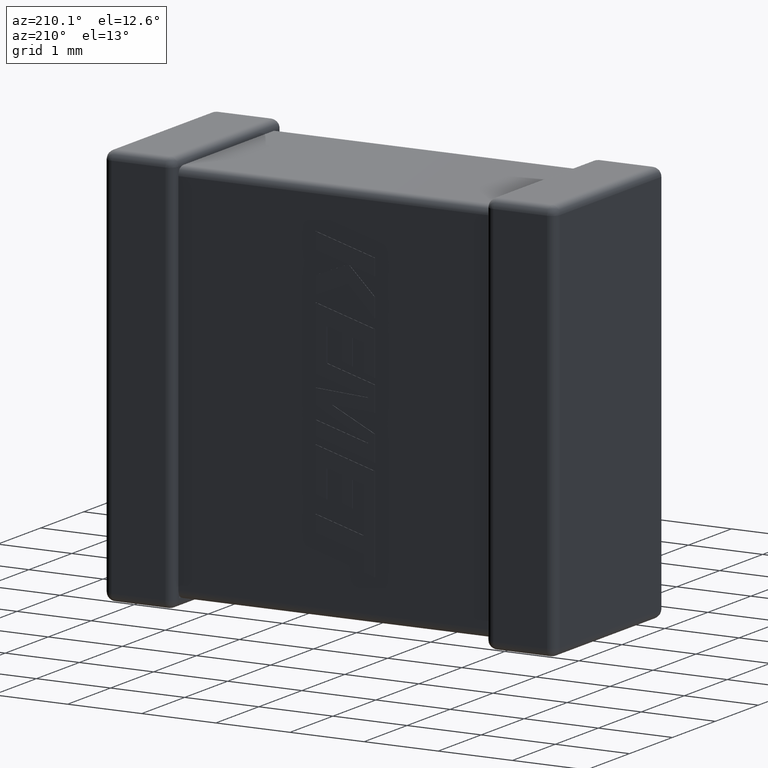
[diagram: clean part render]
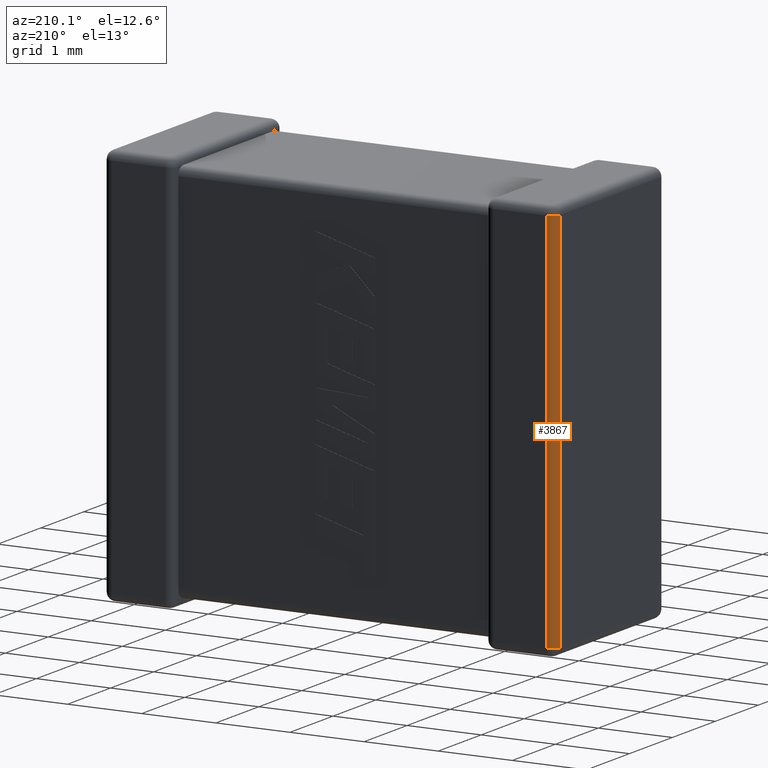
[diagram: same view with one face highlighted and labeled with its STEP entity id]
A machine part, auxiliary view. The second image highlights one B-rep face of the part: STEP entity #3867.
In plain terms, the highlighted cylindrical surface (edge-blend (fillet) strip) has radius 0.1123 mm, axis along (0, 0, -1).
Its self-contained STEP definition (entity closure, byte-faithful):
#9 = VERTEX_POINT ( 'NONE', #1019 ) ;
#96 = DIRECTION ( 'NONE',  ( -0.000000000000000000, 0.000000000000000000, -1.000000000000000000 ) ) ;
#494 = ORIENTED_EDGE ( 'NONE', *, *, #4606, .F. ) ;
#550 = EDGE_LOOP ( 'NONE', ( #2629, #494, #825, #1095 ) ) ;
#804 = CARTESIAN_POINT ( 'NONE',  ( 0.1123200000000000032, 2.437679999999999847, -5.287679999999999936 ) ) ;
#825 = ORIENTED_EDGE ( 'NONE', *, *, #1792, .F. ) ;
#922 = AXIS2_PLACEMENT_3D ( 'NONE', #1913, #3799, #3016 ) ;
#923 = CARTESIAN_POINT ( 'NONE',  ( 0.000000000000000000, 2.437679999999999847, -0.1123199999999999893 ) ) ;
#960 = DIRECTION ( 'NONE',  ( 0.000000000000000000, 0.000000000000000000, 1.000000000000000000 ) ) ;
#1019 = CARTESIAN_POINT ( 'NONE',  ( 0.1123199999999999477, 2.549999999999999822, -5.287679999999999936 ) ) ;
#1058 = CARTESIAN_POINT ( 'NONE',  ( 0.1123199999999999477, 2.549999999999999822, 0.000000000000000000 ) ) ;
#1095 = ORIENTED_EDGE ( 'NONE', *, *, #2648, .F. ) ;
#1137 = VECTOR ( 'NONE', #960, 1000.000000000000000 ) ;
#1504 = DIRECTION ( 'NONE',  ( 0.000000000000000000, 0.000000000000000000, -1.000000000000000000 ) ) ;
#1792 = EDGE_CURVE ( 'NONE', #3266, #3006, #4217, .T. ) ;
#1842 = FACE_OUTER_BOUND ( 'NONE', #550, .T. ) ;
#1909 = CARTESIAN_POINT ( 'NONE',  ( 0.1123199999999999477, 2.437679999999999847, -0.1123199999999999893 ) ) ;
#1913 = CARTESIAN_POINT ( 'NONE',  ( 0.1123199999999999477, 2.437679999999999847, 0.000000000000000000 ) ) ;
#1923 = CARTESIAN_POINT ( 'NONE',  ( 0.1123199999999999477, 2.549999999999999822, -0.1123199999999999893 ) ) ;
#2211 = LINE ( 'NONE', #3637, #4285 ) ;
#2495 = CARTESIAN_POINT ( 'NONE',  ( 0.000000000000000000, 2.437679999999999847, -5.287679999999999936 ) ) ;
#2629 = ORIENTED_EDGE ( 'NONE', *, *, #4584, .F. ) ;
#2648 = EDGE_CURVE ( 'NONE', #9, #3266, #3903, .T. ) ;
#2673 = VERTEX_POINT ( 'NONE', #2495 ) ;
#2762 = CIRCLE ( 'NONE', #2912, 0.1123200000000000032 ) ;
#2912 = AXIS2_PLACEMENT_3D ( 'NONE', #804, #1504, #4413 ) ;
#2916 = AXIS2_PLACEMENT_3D ( 'NONE', #1909, #2980, #4384 ) ;
#2980 = DIRECTION ( 'NONE',  ( 0.000000000000000000, -0.000000000000000000, 1.000000000000000000 ) ) ;
#3006 = VERTEX_POINT ( 'NONE', #923 ) ;
#3016 = DIRECTION ( 'NONE',  ( -1.000000000000000000, 0.000000000000000000, 0.000000000000000000 ) ) ;
#3266 = VERTEX_POINT ( 'NONE', #1923 ) ;
#3637 = CARTESIAN_POINT ( 'NONE',  ( 0.000000000000000000, 2.437679999999999847, -5.400000000000000355 ) ) ;
#3799 = DIRECTION ( 'NONE',  ( 0.000000000000000000, 0.000000000000000000, -1.000000000000000000 ) ) ;
#3867 = ADVANCED_FACE ( 'NONE', ( #1842 ), #4331, .T. ) ;
#3903 = LINE ( 'NONE', #1058, #1137 ) ;
#4217 = CIRCLE ( 'NONE', #2916, 0.1123200000000000032 ) ;
#4285 = VECTOR ( 'NONE', #96, 1000.000000000000000 ) ;
#4331 = CYLINDRICAL_SURFACE ( 'NONE', #922, 0.1123200000000000032 ) ;
#4384 = DIRECTION ( 'NONE',  ( 1.000000000000000000, 0.000000000000000000, 0.000000000000000000 ) ) ;
#4413 = DIRECTION ( 'NONE',  ( -1.000000000000000000, 0.000000000000000000, 0.000000000000000000 ) ) ;
#4584 = EDGE_CURVE ( 'NONE', #2673, #9, #2762, .T. ) ;
#4606 = EDGE_CURVE ( 'NONE', #3006, #2673, #2211, .T. ) ;